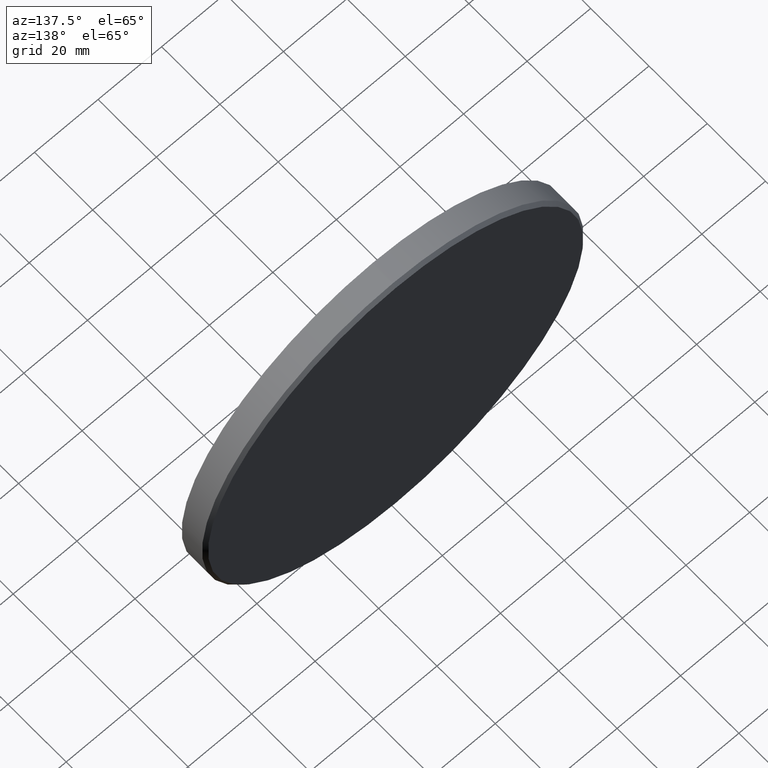
[diagram: clean part render]
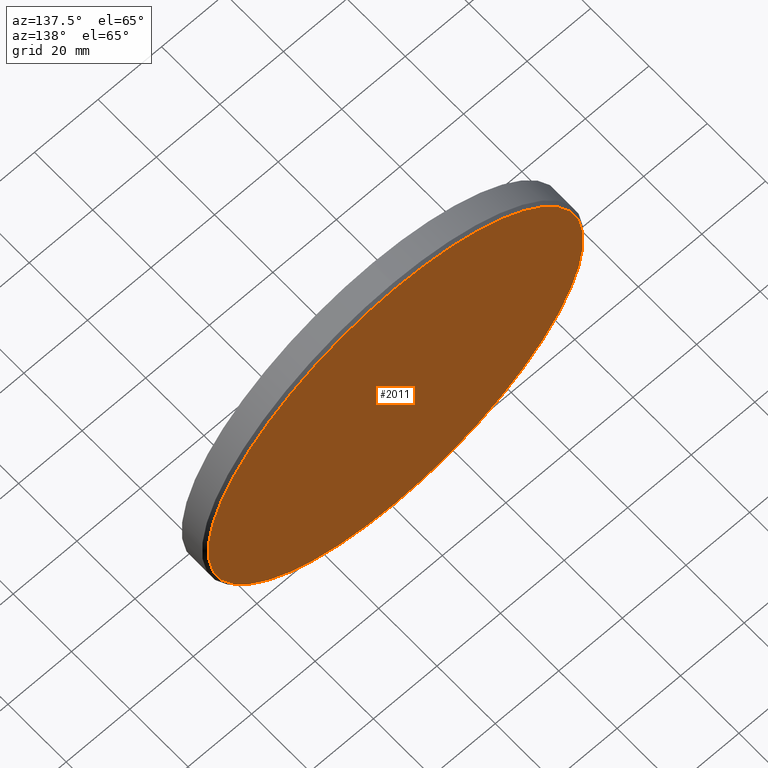
[diagram: same view with one face highlighted and labeled with its STEP entity id]
A machine part, auxiliary view. The second image highlights one B-rep face of the part: STEP entity #2011.
In plain terms, the highlighted planar face has unit normal (0, 1, 0).
Its self-contained STEP definition (entity closure, byte-faithful):
#624 = CIRCLE ( 'NONE', #2912, 59.00000000000003553 ) ;
#1477 = CARTESIAN_POINT ( 'NONE',  ( 7.286648454926753937E-15, 4.000000000000000000, 59.00000000000003553 ) ) ;
#1697 = VERTEX_POINT ( 'NONE', #1477 ) ;
#1824 = CARTESIAN_POINT ( 'NONE',  ( 0.000000000000000000, 4.000000000000000000, 0.000000000000000000 ) ) ;
#2011 = ADVANCED_FACE ( 'NONE', ( #11029 ), #6697, .T. ) ;
#2685 = CIRCLE ( 'NONE', #9513, 59.00000000000003553 ) ;
#2820 = AXIS2_PLACEMENT_3D ( 'NONE', #15343, #6862, #4222 ) ;
#2912 = AXIS2_PLACEMENT_3D ( 'NONE', #10381, #10325, #10267 ) ;
#3142 = DIRECTION ( 'NONE',  ( 0.000000000000000000, 1.000000000000000000, 0.000000000000000000 ) ) ;
#4222 = DIRECTION ( 'NONE',  ( 0.000000000000000000, -0.000000000000000000, 1.000000000000000000 ) ) ;
#4223 = ORIENTED_EDGE ( 'NONE', *, *, #10658, .T. ) ;
#4370 = CARTESIAN_POINT ( 'NONE',  ( 0.000000000000000000, 4.000000000000000000, -59.00000000000003553 ) ) ;
#4591 = VERTEX_POINT ( 'NONE', #4370 ) ;
#4801 = ORIENTED_EDGE ( 'NONE', *, *, #10636, .T. ) ;
#5430 = DIRECTION ( 'NONE',  ( 0.000000000000000000, 0.000000000000000000, 1.000000000000000000 ) ) ;
#5993 = EDGE_LOOP ( 'NONE', ( #4801, #4223 ) ) ;
#6697 = PLANE ( 'NONE',  #2820 ) ;
#6862 = DIRECTION ( 'NONE',  ( 0.000000000000000000, 1.000000000000000000, 0.000000000000000000 ) ) ;
#9513 = AXIS2_PLACEMENT_3D ( 'NONE', #1824, #3142, #5430 ) ;
#10267 = DIRECTION ( 'NONE',  ( 0.000000000000000000, 0.000000000000000000, 1.000000000000000000 ) ) ;
#10325 = DIRECTION ( 'NONE',  ( 0.000000000000000000, 1.000000000000000000, 0.000000000000000000 ) ) ;
#10381 = CARTESIAN_POINT ( 'NONE',  ( 0.000000000000000000, 4.000000000000000000, 0.000000000000000000 ) ) ;
#10636 = EDGE_CURVE ( 'NONE', #4591, #1697, #2685, .T. ) ;
#10658 = EDGE_CURVE ( 'NONE', #1697, #4591, #624, .T. ) ;
#11029 = FACE_OUTER_BOUND ( 'NONE', #5993, .T. ) ;
#15343 = CARTESIAN_POINT ( 'NONE',  ( 0.000000000000000000, 4.000000000000000000, 0.000000000000000000 ) ) ;